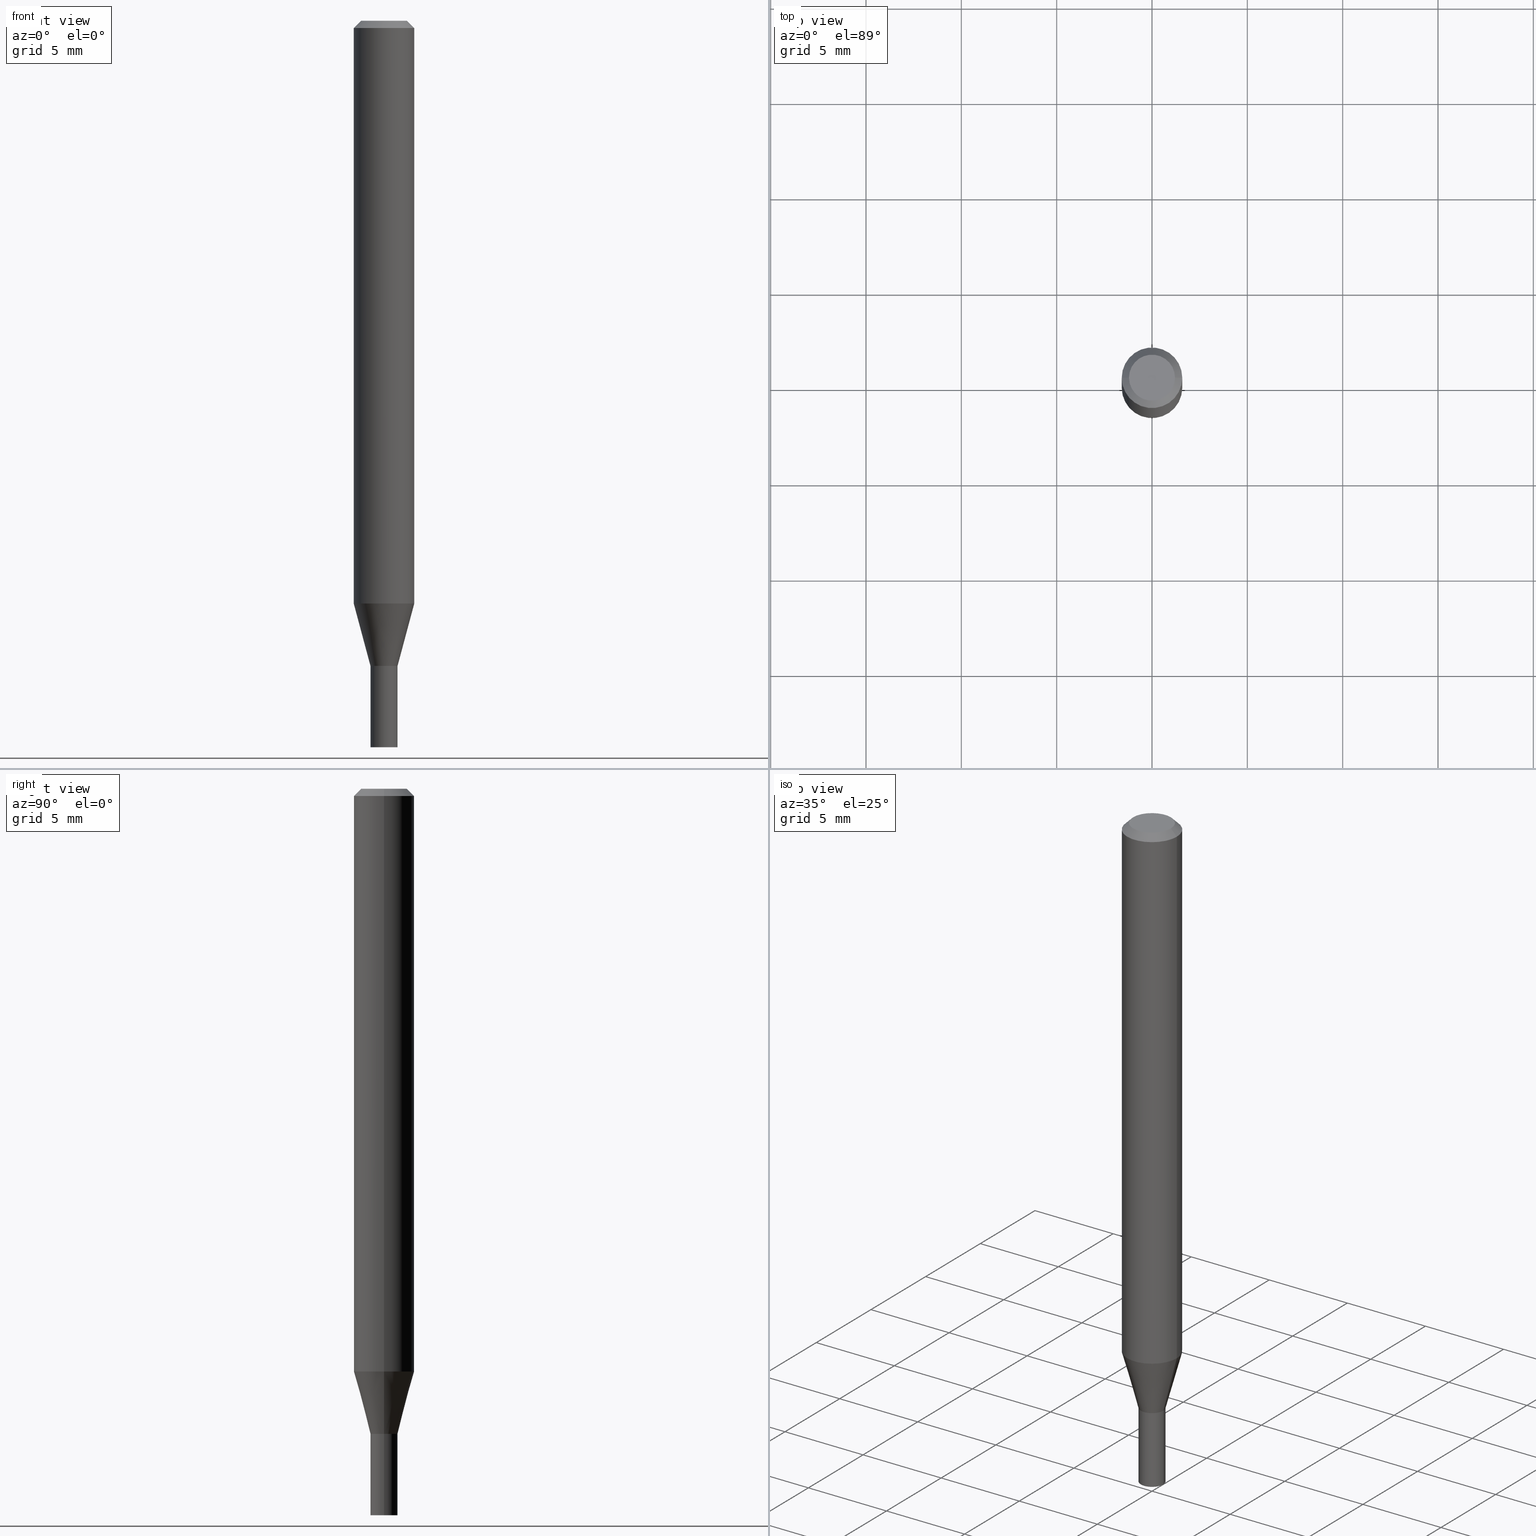
[diagram: canonical four-view strip — front | top / right | iso, engineering-drawing reading convention]
A machine part, canonical four-view strip (front | top / right | iso — engineering-drawing reading convention). The complete STEP part file that produces these views, byte-faithful:
ISO-10303-21;
HEADER;
FILE_DESCRIPTION (( 'STEP AP203' ),
    '1' );
FILE_NAME ('04162.STEP',
    '2024-03-14T17:09:15',
    ( '' ),
    ( '' ),
    'SwSTEP 2.0',
    'SolidWorks 2023',
    '' );
FILE_SCHEMA (( 'CONFIG_CONTROL_DESIGN' ));
ENDSEC;

DATA;
#1 = CC_DESIGN_PERSON_AND_ORGANIZATION_ASSIGNMENT ( #387, #246, ( #231 ) ) ;
#2 = CIRCLE ( 'NONE', #263, 0.02800000000000000405 ) ;
#3 = ORIENTED_EDGE ( 'NONE', *, *, #181, .F. ) ;
#4 = ORIENTED_EDGE ( 'NONE', *, *, #207, .F. ) ;
#5 = VERTEX_POINT ( 'NONE', #84 ) ;
#6 = FACE_OUTER_BOUND ( 'NONE', #153, .T. ) ;
#7 = AXIS2_PLACEMENT_3D ( 'NONE', #341, #36, #110 ) ;
#8 = EDGE_CURVE ( 'NONE', #150, #121, #260, .T. ) ;
#9 =( GEOMETRIC_REPRESENTATION_CONTEXT ( 3 ) GLOBAL_UNCERTAINTY_ASSIGNED_CONTEXT ( ( #360 ) ) GLOBAL_UNIT_ASSIGNED_CONTEXT ( ( #212, #428, #70 ) ) REPRESENTATION_CONTEXT ( 'NONE', 'WORKASPACE' ) );
#10 = EDGE_LOOP ( 'NONE', ( #72, #225 ) ) ;
#11 = DIRECTION ( 'NONE',  ( 0.7071067811865656694, -2.468850131082446387E-15, 0.7071067811865294761 ) ) ;
#12 = EDGE_CURVE ( 'NONE', #157, #91, #404, .T. ) ;
#13 = PERSON ( 'UNSPECIFIED', 'UNSPECIFIED', 'UNSPECIFIED', ('UNSPECIFIED'), ('UNSPECIFIED'), ('UNSPECIFIED') ) ;
#14 = ORIENTED_EDGE ( 'NONE', *, *, #8, .T. ) ;
#15 = DIRECTION ( 'NONE',  ( -2.438088387897960049E-29, 3.491481338843145188E-15, 1.000000000000000000 ) ) ;
#16 = ADVANCED_FACE ( 'NONE', ( #56 ), #79, .T. ) ;
#17 = VERTEX_POINT ( 'NONE', #357 ) ;
#18 = CIRCLE ( 'NONE', #271, 0.02800000000000019834 ) ;
#19 = AXIS2_PLACEMENT_3D ( 'NONE', #183, #156, #114 ) ;
#20 = ORGANIZATION ( 'UNSPECIFIED', 'UNSPECIFIED', '' ) ;
#21 = VERTEX_POINT ( 'NONE', #48 ) ;
#22 = CARTESIAN_POINT ( 'NONE',  ( 0.02800000000000000405, -4.846176098314285600E-15, -1.332000000000000073 ) ) ;
#23 = LINE ( 'NONE', #297, #51 ) ;
#24 = DIRECTION ( 'NONE',  ( -2.445468806185136597E-29, 3.491481338843145583E-15, 1.000000000000000000 ) ) ;
#25 = CIRCLE ( 'NONE', #458, 0.02800000000000019487 ) ;
#26 = LINE ( 'NONE', #164, #307 ) ;
#27 = EDGE_CURVE ( 'NONE', #426, #206, #411, .T. ) ;
#28 = DIRECTION ( 'NONE',  ( -0.7071067811865447972, 2.468850131082228662E-15, -0.7071067811865501263 ) ) ;
#29 = EDGE_CURVE ( 'NONE', #399, #343, #160, .T. ) ;
#30 = APPROVAL_STATUS ( 'not_yet_approved' ) ;
#31 = CYLINDRICAL_SURFACE ( 'NONE', #71, 0.02800000000000000405 ) ;
#32 = AXIS2_PLACEMENT_3D ( 'NONE', #330, #100, #197 ) ;
#33 = CALENDAR_DATE ( 2024, 14, 3 ) ;
#34 = VERTEX_POINT ( 'NONE', #178 ) ;
#35 = DIRECTION ( 'NONE',  ( 1.000000000000000000, 0.000000000000000000, 0.000000000000000000 ) ) ;
#36 = DIRECTION ( 'NONE',  ( -2.445468806185136597E-29, 3.491481338843145583E-15, 1.000000000000000000 ) ) ;
#37 = CYLINDRICAL_SURFACE ( 'NONE', #445, 0.02800000000000000405 ) ;
#38 = APPROVAL ( #30, 'UNSPECIFIED' ) ;
#39 = LINE ( 'NONE', #208, #417 ) ;
#40 = ORIENTED_EDGE ( 'NONE', *, *, #117, .T. ) ;
#41 = CIRCLE ( 'NONE', #376, 0.02750000000000000014 ) ;
#42 = CARTESIAN_POINT ( 'NONE',  ( 0.000000000000000000, 0.000000000000000000, 0.000000000000000000 ) ) ;
#43 = PERSON_AND_ORGANIZATION_ROLE ( 'design_owner' ) ;
#44 = ORIENTED_EDGE ( 'NONE', *, *, #67, .T. ) ;
#45 = ORIENTED_EDGE ( 'NONE', *, *, #257, .T. ) ;
#46 = EDGE_CURVE ( 'NONE', #343, #121, #39, .T. ) ;
#47 = ORIENTED_EDGE ( 'NONE', *, *, #99, .F. ) ;
#48 = CARTESIAN_POINT ( 'NONE',  ( 0.02800000000000000405, -5.432744963239933676E-15, -1.500000000000000222 ) ) ;
#49 = ADVANCED_FACE ( 'NONE', ( #247 ), #429, .F. ) ;
#50 = DIRECTION ( 'NONE',  ( 2.445468806185136597E-29, -3.491481338843145583E-15, -1.000000000000000000 ) ) ;
#51 = VECTOR ( 'NONE', #28, 39.37007874015748854 ) ;
#52 = EDGE_CURVE ( 'NONE', #406, #281, #216, .T. ) ;
#53 = DIRECTION ( 'NONE',  ( -2.445468806185136877E-29, 3.491481338843145188E-15, 1.000000000000000000 ) ) ;
#54 = FACE_OUTER_BOUND ( 'NONE', #315, .T. ) ;
#55 = EDGE_CURVE ( 'NONE', #5, #21, #2, .T. ) ;
#56 = FACE_OUTER_BOUND ( 'NONE', #163, .T. ) ;
#57 = ORIENTED_EDGE ( 'NONE', *, *, #427, .T. ) ;
#58 = DIRECTION ( 'NONE',  ( -2.445468806185136597E-29, 3.491481338843145583E-15, 1.000000000000000000 ) ) ;
#59 = CARTESIAN_POINT ( 'NONE',  ( 3.257364449838602072E-29, -4.650653143339070101E-15, -1.332000000000000073 ) ) ;
#60 = AXIS2_PLACEMENT_3D ( 'NONE', #268, #413, #372 ) ;
#61 = DIRECTION ( 'NONE',  ( 1.000000000000000000, -6.982962677686262766E-15, 0.000000000000000000 ) ) ;
#62 = DIRECTION ( 'NONE',  ( -1.000000000000000000, 6.982962677686265922E-15, -4.876176775795935793E-29 ) ) ;
#63 = DIRECTION ( 'NONE',  ( 2.438088387897960049E-29, -3.491481338843145188E-15, -1.000000000000000000 ) ) ;
#64 = AXIS2_PLACEMENT_3D ( 'NONE', #128, #63, #62 ) ;
#65 = AXIS2_PLACEMENT_3D ( 'NONE', #378, #391, #152 ) ;
#66 = DIRECTION ( 'NONE',  ( -2.445468806185136597E-29, 3.491481338843145583E-15, 1.000000000000000000 ) ) ;
#67 = EDGE_CURVE ( 'NONE', #159, #157, #104, .T. ) ;
#68 = DIRECTION ( 'NONE',  ( -2.445468806185136597E-29, 3.491481338843145583E-15, 1.000000000000000000 ) ) ;
#69 = EDGE_LOOP ( 'NONE', ( #464, #191 ) ) ;
#70 =( NAMED_UNIT ( * ) SI_UNIT ( $, .STERADIAN. ) SOLID_ANGLE_UNIT ( ) );
#71 = AXIS2_PLACEMENT_3D ( 'NONE', #142, #424, #339 ) ;
#72 = ORIENTED_EDGE ( 'NONE', *, *, #130, .T. ) ;
#73 = CIRCLE ( 'NONE', #132, 0.06250000000000000000 ) ;
#74 = CARTESIAN_POINT ( 'NONE',  ( 3.668203209277704895E-29, -5.237222008264718177E-15, -1.500000000000000222 ) ) ;
#75 = ORIENTED_EDGE ( 'NONE', *, *, #300, .T. ) ;
#76 = LENGTH_MEASURE_WITH_UNIT ( LENGTH_MEASURE( 0.02539999999999999897 ), #140 );
#77 = EDGE_LOOP ( 'NONE', ( #45, #232, #221, #47 ) ) ;
#78 = APPROVAL_DATE_TIME ( #148, #286 ) ;
#79 = CONICAL_SURFACE ( 'NONE', #200, 0.02800000000000019487, 0.2617993877991501850 ) ;
#80 = APPROVAL_PERSON_ORGANIZATION ( #319, #38, #175 ) ;
#81 = ORIENTED_EDGE ( 'NONE', *, *, #190, .F. ) ;
#82 = CC_DESIGN_DATE_AND_TIME_ASSIGNMENT ( #135, #167, ( #231 ) ) ;
#83 = DIRECTION ( 'NONE',  ( 1.000000000000000000, -6.982962677686284065E-15, 0.000000000000000000 ) ) ;
#84 = CARTESIAN_POINT ( 'NONE',  ( -0.02800000000000000405, -4.744985609789067093E-15, -1.500000000000000222 ) ) ;
#85 = DIRECTION ( 'NONE',  ( -2.445468806185136597E-29, 3.491481338843145583E-15, 1.000000000000000000 ) ) ;
#86 = ORIENTED_EDGE ( 'NONE', *, *, #52, .T. ) ;
#87 = ADVANCED_FACE ( 'NONE', ( #465 ), #31, .T. ) ;
#88 = DIRECTION ( 'NONE',  ( 1.000000000000000000, -6.982962677686266711E-15, 4.876176775795935232E-29 ) ) ;
#89 = AXIS2_PLACEMENT_3D ( 'NONE', #147, #317, #35 ) ;
#90 = CARTESIAN_POINT ( 'NONE',  ( -0.02800000000000019487, 1.989519660128294367E-16, -1.377301825271383180E-30 ) ) ;
#91 = VERTEX_POINT ( 'NONE', #106 ) ;
#92 = DIRECTION ( 'NONE',  ( -2.445468806185136597E-29, 3.491481338843145583E-15, 1.000000000000000000 ) ) ;
#93 = DIRECTION ( 'NONE',  ( 0.7071067811865447972, -7.319954787623245001E-15, -0.7071067811865501263 ) ) ;
#94 = CARTESIAN_POINT ( 'NONE',  ( 0.06250000000000000000, -4.364351673553916694E-16, 3.047610484872459871E-30 ) ) ;
#95 = ADVANCED_FACE ( 'NONE', ( #139 ), #274, .F. ) ;
#96 = MANIFOLD_SOLID_BREP ( 'Body-Move/Copy2[1]', #143 ) ;
#97 = FACE_OUTER_BOUND ( 'NONE', #119, .T. ) ;
#98 = CARTESIAN_POINT ( 'NONE',  ( -0.02750000000000000014, -4.452604663830931569E-15, -1.332000000000000517 ) ) ;
#99 = EDGE_CURVE ( 'NONE', #21, #206, #447, .T. ) ;
#100 = DIRECTION ( 'NONE',  ( -2.445468806185136597E-29, 3.491481338843145583E-15, 1.000000000000000000 ) ) ;
#101 = EDGE_CURVE ( 'NONE', #352, #34, #299, .T. ) ;
#102 = APPROVAL_DATE_TIME ( #136, #149 ) ;
#103 = FACE_OUTER_BOUND ( 'NONE', #213, .T. ) ;
#104 = LINE ( 'NONE', #204, #359 ) ;
#105 = ORIENTED_EDGE ( 'NONE', *, *, #55, .T. ) ;
#106 = CARTESIAN_POINT ( 'NONE',  ( 0.06250000000000000000, -4.888073874380388472E-16, -0.01499999999999999944 ) ) ;
#107 = APPROVAL_ROLE ( '' ) ;
#108 = ORIENTED_EDGE ( 'NONE', *, *, #328, .F. ) ;
#109 = MECHANICAL_CONTEXT ( 'NONE', #422, 'mechanical' ) ;
#110 = DIRECTION ( 'NONE',  ( 1.000000000000000000, -6.982962677686279332E-15, 0.000000000000000000 ) ) ;
#111 = VECTOR ( 'NONE', #53, 39.37007874015748143 ) ;
#112 = PERSON_AND_ORGANIZATION ( #13, #20 ) ;
#113 = CC_DESIGN_APPROVAL ( #286, ( #218 ) ) ;
#114 = DIRECTION ( 'NONE',  ( 1.000000000000000000, -6.982962677686270655E-15, 0.000000000000000000 ) ) ;
#115 = COORDINATED_UNIVERSAL_TIME_OFFSET ( 5, 0, .BEHIND. ) ;
#116 = CARTESIAN_POINT ( 'NONE',  ( 0.02750000000000000014, -4.842684616975444171E-15, -1.332000000000000517 ) ) ;
#117 = EDGE_CURVE ( 'NONE', #34, #121, #18, .T. ) ;
#118 = DIRECTION ( 'NONE',  ( -0.2588190451025214611, 5.211531920934550253E-15, 0.9659258262890679791 ) ) ;
#119 = EDGE_LOOP ( 'NONE', ( #127, #248, #385, #4 ) ) ;
#120 = ORIENTED_EDGE ( 'NONE', *, *, #222, .F. ) ;
#121 = VERTEX_POINT ( 'NONE', #129 ) ;
#122 = CARTESIAN_POINT ( 'NONE',  ( -0.02800000000000019487, -4.451701177326241083E-15, -1.332000000000000073 ) ) ;
#123 = AXIS2_PLACEMENT_3D ( 'NONE', #198, #415, #301 ) ;
#124 = ORIENTED_EDGE ( 'NONE', *, *, #300, .F. ) ;
#125 = CARTESIAN_POINT ( 'NONE',  ( 3.668203209277705088E-31, -5.237222008264718399E-17, -0.01499999999999999944 ) ) ;
#126 = DIRECTION ( 'NONE',  ( -2.445468806185136877E-29, 3.491481338843145188E-15, 1.000000000000000000 ) ) ;
#127 = ORIENTED_EDGE ( 'NONE', *, *, #423, .T. ) ;
#128 = CARTESIAN_POINT ( 'NONE',  ( 3.316907271900976096E-16, 0.04749999999999999362, -1.076740139133766305E-16 ) ) ;
#129 = CARTESIAN_POINT ( 'NONE',  ( -0.02800000000000019834, -4.449955436656819579E-15, -1.331500000000000350 ) ) ;
#130 = EDGE_CURVE ( 'NONE', #206, #426, #256, .T. ) ;
#131 = AXIS2_PLACEMENT_3D ( 'NONE', #462, #313, #275 ) ;
#132 = AXIS2_PLACEMENT_3D ( 'NONE', #375, #66, #338 ) ;
#133 = PLANE ( 'NONE',  #241 ) ;
#134 = ADVANCED_FACE ( 'NONE', ( #332 ), #374, .T. ) ;
#135 = DATE_AND_TIME ( #176, #348 ) ;
#136 = DATE_AND_TIME ( #33, #195 ) ;
#137 = CARTESIAN_POINT ( 'NONE',  ( 3.576687321579069994E-29, -5.368277968210015545E-15, -1.500000000000000222 ) ) ;
#138 = LOCAL_TIME ( 13, 9, 15.00000000000000000, #312 ) ;
#139 = FACE_OUTER_BOUND ( 'NONE', #155, .T. ) ;
#140 =( LENGTH_UNIT ( ) NAMED_UNIT ( * ) SI_UNIT ( $, .METRE. ) );
#141 = DIRECTION ( 'NONE',  ( -2.445468806185136877E-29, 3.491481338843145188E-15, 1.000000000000000000 ) ) ;
#142 = CARTESIAN_POINT ( 'NONE',  ( 0.000000000000000000, 0.000000000000000000, 0.000000000000000000 ) ) ;
#143 = CLOSED_SHELL ( 'NONE', ( #305, #272, #87, #49 ) ) ;
#144 = AXIS2_PLACEMENT_3D ( 'NONE', #442, #50, #400 ) ;
#145 = EDGE_CURVE ( 'NONE', #406, #157, #23, .T. ) ;
#146 = ORIENTED_EDGE ( 'NONE', *, *, #29, .T. ) ;
#147 = CARTESIAN_POINT ( 'NONE',  ( 0.000000000000000000, 0.000000000000000000, 0.000000000000000000 ) ) ;
#148 = DATE_AND_TIME ( #466, #304 ) ;
#149 = APPROVAL ( #346, 'UNSPECIFIED' ) ;
#150 = VERTEX_POINT ( 'NONE', #449 ) ;
#151 = FACE_OUTER_BOUND ( 'NONE', #296, .T. ) ;
#152 = DIRECTION ( 'NONE',  ( -1.000000000000000000, 6.982962677686266711E-15, 0.000000000000000000 ) ) ;
#153 = EDGE_LOOP ( 'NONE', ( #219, #355, #435, #40 ) ) ;
#154 = CARTESIAN_POINT ( 'NONE',  ( 0.02800000000000019487, -4.846176098314287967E-15, -1.332000000000000073 ) ) ;
#155 = EDGE_LOOP ( 'NONE', ( #86, #441 ) ) ;
#156 = DIRECTION ( 'NONE',  ( -2.445468806185136597E-29, 3.491481338843145583E-15, 1.000000000000000000 ) ) ;
#157 = VERTEX_POINT ( 'NONE', #303 ) ;
#158 = CYLINDRICAL_SURFACE ( 'NONE', #170, 0.02800000000000019487 ) ;
#159 = VERTEX_POINT ( 'NONE', #238 ) ;
#160 = CIRCLE ( 'NONE', #7, 0.02750000000000000014 ) ;
#161 = AXIS2_PLACEMENT_3D ( 'NONE', #323, #278, #345 ) ;
#162 = APPROVAL_PERSON_ORGANIZATION ( #209, #149, #380 ) ;
#163 = EDGE_LOOP ( 'NONE', ( #226, #185, #188, #124 ) ) ;
#164 = CARTESIAN_POINT ( 'NONE',  ( 0.02800000000000019487, -4.846176098314287967E-15, -1.332000000000000073 ) ) ;
#165 = LINE ( 'NONE', #410, #302 ) ;
#166 = CARTESIAN_POINT ( 'NONE',  ( -0.02800000000000000405, 1.989519660128280808E-16, -1.377301825271373721E-30 ) ) ;
#167 = DATE_TIME_ROLE ( 'creation_date' ) ;
#168 = CARTESIAN_POINT ( 'NONE',  ( 0.02800000000000019487, -1.955229549752168307E-16, 1.365329497222871425E-30 ) ) ;
#169 = CONICAL_SURFACE ( 'NONE', #32, 0.02750000000000000014, 0.7853981633974739252 ) ;
#170 = AXIS2_PLACEMENT_3D ( 'NONE', #42, #85, #88 ) ;
#171 = CC_DESIGN_PERSON_AND_ORGANIZATION_ASSIGNMENT ( #112, #351, ( #280 ) ) ;
#172 = DIRECTION ( 'NONE',  ( -2.445468806185136877E-29, 3.491481338843145188E-15, 1.000000000000000000 ) ) ;
#173 = SHAPE_DEFINITION_REPRESENTATION ( #370, #196 ) ;
#174 = CC_DESIGN_APPROVAL ( #149, ( #280 ) ) ;
#175 = APPROVAL_ROLE ( '' ) ;
#176 = CALENDAR_DATE ( 2024, 14, 3 ) ;
#177 = EDGE_CURVE ( 'NONE', #91, #157, #240, .T. ) ;
#178 = CARTESIAN_POINT ( 'NONE',  ( 0.02800000000000019834, -4.844430357644866463E-15, -1.331500000000000350 ) ) ;
#179 = SECURITY_CLASSIFICATION_LEVEL ( 'unclassified' ) ;
#180 = EDGE_LOOP ( 'NONE', ( #146, #395, #210, #223 ) ) ;
#181 = EDGE_CURVE ( 'NONE', #150, #352, #431, .T. ) ;
#182 = DIRECTION ( 'NONE',  ( -2.445468806185136597E-29, 3.491481338843145583E-15, 1.000000000000000000 ) ) ;
#183 = CARTESIAN_POINT ( 'NONE',  ( 2.942496272599838320E-29, -4.201104834955752285E-15, -1.203244247138874901 ) ) ;
#184 = EDGE_LOOP ( 'NONE', ( #277, #262 ) ) ;
#185 = ORIENTED_EDGE ( 'NONE', *, *, #181, .T. ) ;
#186 = CIRCLE ( 'NONE', #19, 0.06250000000000000000 ) ;
#187 = DIRECTION ( 'NONE',  ( 1.000000000000000000, -6.982962677686266711E-15, 4.876176775795935793E-29 ) ) ;
#188 = ORIENTED_EDGE ( 'NONE', *, *, #207, .T. ) ;
#189 = DIRECTION ( 'NONE',  ( 1.000000000000000000, -6.982962677686266711E-15, 4.876176775795935232E-29 ) ) ;
#190 = EDGE_CURVE ( 'NONE', #121, #34, #192, .T. ) ;
#191 = ORIENTED_EDGE ( 'NONE', *, *, #55, .F. ) ;
#192 = CIRCLE ( 'NONE', #60, 0.02800000000000019834 ) ;
#193 = DIRECTION ( 'NONE',  ( 1.000000000000000000, -6.982962677686284065E-15, 0.000000000000000000 ) ) ;
#194 = DIRECTION ( 'NONE',  ( 1.000000000000000000, -6.982962677686267499E-15, 4.884662768193073002E-29 ) ) ;
#195 = LOCAL_TIME ( 13, 9, 15.00000000000000000, #205 ) ;
#196 = ADVANCED_BREP_SHAPE_REPRESENTATION ( '04162', ( #96, #419, #89 ), #9 ) ;
#197 = DIRECTION ( 'NONE',  ( 1.000000000000000000, -6.982962677686279332E-15, 0.000000000000000000 ) ) ;
#198 = CARTESIAN_POINT ( 'NONE',  ( 3.257364449838602072E-29, -4.650653143339070101E-15, -1.332000000000000073 ) ) ;
#199 = CARTESIAN_POINT ( 'NONE',  ( 3.257364449838602633E-29, -4.650653143339071678E-15, -1.332000000000000517 ) ) ;
#200 = AXIS2_PLACEMENT_3D ( 'NONE', #294, #448, #354 ) ;
#201 = DIRECTION ( 'NONE',  ( 0.2588190451025214611, 1.565188264969620982E-15, 0.9659258262890679791 ) ) ;
#202 = APPLICATION_CONTEXT ( 'configuration controlled 3d designs of mechanical parts and assemblies' ) ;
#203 = APPLICATION_PROTOCOL_DEFINITION ( 'international standard', 'config_control_design', 1994, #202 ) ;
#204 = CARTESIAN_POINT ( 'NONE',  ( -0.06250000000000000000, 4.440892098500626162E-16, -3.074334431409316114E-30 ) ) ;
#205 = COORDINATED_UNIVERSAL_TIME_OFFSET ( 5, 0, .BEHIND. ) ;
#206 = VERTEX_POINT ( 'NONE', #22 ) ;
#207 = EDGE_CURVE ( 'NONE', #352, #17, #26, .T. ) ;
#208 = CARTESIAN_POINT ( 'NONE',  ( -0.02750000000000000014, -4.455253891005043559E-15, -1.332000000000000517 ) ) ;
#209 = PERSON_AND_ORGANIZATION ( #13, #20 ) ;
#210 = ORIENTED_EDGE ( 'NONE', *, *, #117, .F. ) ;
#211 = CC_DESIGN_DATE_AND_TIME_ASSIGNMENT ( #251, #389, ( #280 ) ) ;
#212 =( CONVERSION_BASED_UNIT ( 'INCH', #76 ) LENGTH_UNIT ( ) NAMED_UNIT ( #214 ) );
#213 = EDGE_LOOP ( 'NONE', ( #3, #14, #340, #254 ) ) ;
#214 = DIMENSIONAL_EXPONENTS ( 1.000000000000000000, 0.000000000000000000, 0.000000000000000000, 0.000000000000000000, 0.000000000000000000, 0.000000000000000000, 0.000000000000000000 ) ;
#215 = APPLICATION_PROTOCOL_DEFINITION ( 'international standard', 'config_control_design', 1994, #422 ) ;
#216 = CIRCLE ( 'NONE', #457, 0.04749999999999999362 ) ;
#217 = PERSON_AND_ORGANIZATION_ROLE ( 'creator' ) ;
#218 = PRODUCT_DEFINITION_FORMATION_WITH_SPECIFIED_SOURCE ( 'ANY', '', #450, .NOT_KNOWN. ) ;
#219 = ORIENTED_EDGE ( 'NONE', *, *, #8, .F. ) ;
#220 = CARTESIAN_POINT ( 'NONE',  ( 3.257364449838602072E-29, -4.650653143339070101E-15, -1.332000000000000073 ) ) ;
#221 = ORIENTED_EDGE ( 'NONE', *, *, #130, .F. ) ;
#222 = EDGE_CURVE ( 'NONE', #281, #91, #165, .T. ) ;
#223 = ORIENTED_EDGE ( 'NONE', *, *, #420, .F. ) ;
#224 = DIRECTION ( 'NONE',  ( 1.000000000000000000, -6.982962677686279332E-15, 0.000000000000000000 ) ) ;
#225 = ORIENTED_EDGE ( 'NONE', *, *, #27, .T. ) ;
#226 = ORIENTED_EDGE ( 'NONE', *, *, #394, .F. ) ;
#227 = CONICAL_SURFACE ( 'NONE', #287, 0.02800000000000019487, 0.2617993877991501850 ) ;
#228 = LINE ( 'NONE', #122, #386 ) ;
#229 = ADVANCED_FACE ( 'NONE', ( #454 ), #169, .T. ) ;
#230 = CARTESIAN_POINT ( 'NONE',  ( 3.668203209277705088E-31, -5.237222008264718399E-17, -0.01499999999999999944 ) ) ;
#231 = PRODUCT_DEFINITION ( 'UNKNOWN', '', #218, #320 ) ;
#232 = ORIENTED_EDGE ( 'NONE', *, *, #337, .T. ) ;
#233 = DIRECTION ( 'NONE',  ( 1.000000000000000000, -6.982962677686266711E-15, 0.000000000000000000 ) ) ;
#234 = LINE ( 'NONE', #94, #288 ) ;
#235 = CARTESIAN_POINT ( 'NONE',  ( 3.257364449838602072E-29, -4.650653143339070101E-15, -1.332000000000000073 ) ) ;
#236 = LOCAL_TIME ( 13, 9, 15.00000000000000000, #283 ) ;
#237 = FACE_OUTER_BOUND ( 'NONE', #69, .T. ) ;
#238 = CARTESIAN_POINT ( 'NONE',  ( -0.06250000000000000000, -3.757015625105688880E-15, -1.203244247138874901 ) ) ;
#239 = CARTESIAN_POINT ( 'NONE',  ( 0.04749999999999999362, -4.035134999187576651E-16, 1.163426993633481204E-16 ) ) ;
#240 = CIRCLE ( 'NONE', #452, 0.06250000000000000000 ) ;
#241 = AXIS2_PLACEMENT_3D ( 'NONE', #137, #416, #269 ) ;
#242 = ADVANCED_FACE ( 'NONE', ( #97 ), #227, .T. ) ;
#243 = DIRECTION ( 'NONE',  ( 1.000000000000000000, -6.982962677686266711E-15, 4.876176775795935232E-29 ) ) ;
#244 = DIRECTION ( 'NONE',  ( -2.445468806185136597E-29, 3.491481338843145583E-15, 1.000000000000000000 ) ) ;
#245 = EDGE_LOOP ( 'NONE', ( #57, #44, #434, #289 ) ) ;
#246 = PERSON_AND_ORGANIZATION_ROLE ( 'creator' ) ;
#247 = FACE_OUTER_BOUND ( 'NONE', #10, .T. ) ;
#248 = ORIENTED_EDGE ( 'NONE', *, *, #394, .T. ) ;
#249 = AXIS2_PLACEMENT_3D ( 'NONE', #230, #58, #364 ) ;
#250 = DATE_AND_TIME ( #310, #138 ) ;
#251 = DATE_AND_TIME ( #425, #236 ) ;
#252 = CC_DESIGN_PERSON_AND_ORGANIZATION_ASSIGNMENT ( #342, #430, ( #218 ) ) ;
#253 = ORIENTED_EDGE ( 'NONE', *, *, #46, .F. ) ;
#254 = ORIENTED_EDGE ( 'NONE', *, *, #101, .F. ) ;
#255 = DIRECTION ( 'NONE',  ( 1.000000000000000000, -6.982962677686266711E-15, 4.876176775795935793E-29 ) ) ;
#256 = CIRCLE ( 'NONE', #123, 0.02800000000000000405 ) ;
#257 = EDGE_CURVE ( 'NONE', #21, #5, #439, .T. ) ;
#258 = DIRECTION ( 'NONE',  ( -2.445468806185136597E-29, 3.491481338843145583E-15, 1.000000000000000000 ) ) ;
#259 = ORIENTED_EDGE ( 'NONE', *, *, #337, .F. ) ;
#260 = LINE ( 'NONE', #90, #111 ) ;
#261 = CARTESIAN_POINT ( 'NONE',  ( 0.000000000000000000, 0.000000000000000000, 0.000000000000000000 ) ) ;
#262 = ORIENTED_EDGE ( 'NONE', *, *, #350, .F. ) ;
#263 = AXIS2_PLACEMENT_3D ( 'NONE', #74, #244, #311 ) ;
#264 = AXIS2_PLACEMENT_3D ( 'NONE', #438, #15, #285 ) ;
#265 = CARTESIAN_POINT ( 'NONE',  ( 0.02800000000000000405, -1.955229549752154995E-16, 1.365329497222862141E-30 ) ) ;
#266 = DIRECTION ( 'NONE',  ( 1.000000000000000000, -6.982962677686279332E-15, 0.000000000000000000 ) ) ;
#267 = DIRECTION ( 'NONE',  ( -2.445468806185136597E-29, 3.491481338843145583E-15, 1.000000000000000000 ) ) ;
#268 = CARTESIAN_POINT ( 'NONE',  ( 3.256141715435509832E-29, -4.648907402669649386E-15, -1.331500000000000350 ) ) ;
#269 = DIRECTION ( 'NONE',  ( 1.000000000000000000, -6.982962677686265922E-15, 4.876176775795935793E-29 ) ) ;
#270 = CARTESIAN_POINT ( 'NONE',  ( 3.256141715435509832E-29, -4.648907402669649386E-15, -1.331500000000000350 ) ) ;
#271 = AXIS2_PLACEMENT_3D ( 'NONE', #270, #92, #365 ) ;
#272 = ADVANCED_FACE ( 'NONE', ( #237 ), #133, .F. ) ;
#273 = AXIS2_PLACEMENT_3D ( 'NONE', #366, #267, #194 ) ;
#274 = PLANE ( 'NONE',  #64 ) ;
#275 = DIRECTION ( 'NONE',  ( -1.000000000000000000, 6.982962677686265922E-15, -4.876176775795935793E-29 ) ) ;
#276 = ORIENTED_EDGE ( 'NONE', *, *, #145, .F. ) ;
#277 = ORIENTED_EDGE ( 'NONE', *, *, #29, .F. ) ;
#278 = DIRECTION ( 'NONE',  ( -2.445468806185136597E-29, 3.491481338843145583E-15, 1.000000000000000000 ) ) ;
#279 = AXIS2_PLACEMENT_3D ( 'NONE', #368, #455, #61 ) ;
#280 = SECURITY_CLASSIFICATION ( '', '', #179 ) ;
#281 = VERTEX_POINT ( 'NONE', #239 ) ;
#282 = CARTESIAN_POINT ( 'NONE',  ( 0.000000000000000000, 0.000000000000000000, 0.000000000000000000 ) ) ;
#283 = COORDINATED_UNIVERSAL_TIME_OFFSET ( 5, 0, .BEHIND. ) ;
#284 = CARTESIAN_POINT ( 'NONE',  ( -0.04749999999999999362, 3.578768372314212971E-16, 1.163426993633431407E-16 ) ) ;
#285 = DIRECTION ( 'NONE',  ( 1.000000000000000000, -6.982962677686265922E-15, 4.876176775795935793E-29 ) ) ;
#286 = APPROVAL ( #334, 'UNSPECIFIED' ) ;
#287 = AXIS2_PLACEMENT_3D ( 'NONE', #235, #371, #306 ) ;
#288 = VECTOR ( 'NONE', #126, 39.37007874015748143 ) ;
#289 = ORIENTED_EDGE ( 'NONE', *, *, #321, .F. ) ;
#290 = ORIENTED_EDGE ( 'NONE', *, *, #420, .T. ) ;
#291 = CC_DESIGN_PERSON_AND_ORGANIZATION_ASSIGNMENT ( #349, #43, ( #450 ) ) ;
#292 = EDGE_LOOP ( 'NONE', ( #108, #377, #409, #276 ) ) ;
#293 = FACE_OUTER_BOUND ( 'NONE', #184, .T. ) ;
#294 = CARTESIAN_POINT ( 'NONE',  ( 3.257364449838602072E-29, -4.650653143339070101E-15, -1.332000000000000073 ) ) ;
#295 = AXIS2_PLACEMENT_3D ( 'NONE', #59, #335, #193 ) ;
#296 = EDGE_LOOP ( 'NONE', ( #120, #381, #392, #443 ) ) ;
#297 = CARTESIAN_POINT ( 'NONE',  ( -0.06250000000000000000, 3.840629472727444916E-16, -0.01499999999999999944 ) ) ;
#298 = ORIENTED_EDGE ( 'NONE', *, *, #27, .F. ) ;
#299 = LINE ( 'NONE', #168, #384 ) ;
#300 = EDGE_CURVE ( 'NONE', #159, #17, #73, .T. ) ;
#301 = DIRECTION ( 'NONE',  ( 1.000000000000000000, -6.982962677686262766E-15, 0.000000000000000000 ) ) ;
#302 = VECTOR ( 'NONE', #93, 39.37007874015748854 ) ;
#303 = CARTESIAN_POINT ( 'NONE',  ( -0.06250000000000000000, -1.682649317669137066E-15, -0.01499999999999999944 ) ) ;
#304 = LOCAL_TIME ( 13, 9, 15.00000000000000000, #115 ) ;
#305 = ADVANCED_FACE ( 'NONE', ( #390 ), #37, .T. ) ;
#306 = DIRECTION ( 'NONE',  ( 1.000000000000000000, -6.982962677686284065E-15, 0.000000000000000000 ) ) ;
#307 = VECTOR ( 'NONE', #201, 39.37007874015748143 ) ;
#308 = ORIENTED_EDGE ( 'NONE', *, *, #99, .T. ) ;
#309 = CONICAL_SURFACE ( 'NONE', #144, 0.06250000000000000000, 0.7853981633974445042 ) ;
#310 = CALENDAR_DATE ( 2024, 14, 3 ) ;
#311 = DIRECTION ( 'NONE',  ( 1.000000000000000000, -6.982962677686262766E-15, 0.000000000000000000 ) ) ;
#312 = COORDINATED_UNIVERSAL_TIME_OFFSET ( 5, 0, .BEHIND. ) ;
#313 = DIRECTION ( 'NONE',  ( 2.438088387897960049E-29, -3.491481338843145188E-15, -1.000000000000000000 ) ) ;
#314 = PERSON_AND_ORGANIZATION ( #13, #20 ) ;
#315 = EDGE_LOOP ( 'NONE', ( #318, #75, #325, #362 ) ) ;
#316 = VECTOR ( 'NONE', #407, 39.37007874015748143 ) ;
#317 = DIRECTION ( 'NONE',  ( 0.000000000000000000, 0.000000000000000000, 1.000000000000000000 ) ) ;
#318 = ORIENTED_EDGE ( 'NONE', *, *, #67, .F. ) ;
#319 = PERSON_AND_ORGANIZATION ( #13, #20 ) ;
#320 = DESIGN_CONTEXT ( 'detailed design', #202, 'design' ) ;
#321 = EDGE_CURVE ( 'NONE', #17, #91, #234, .T. ) ;
#322 = CLOSED_SHELL ( 'NONE', ( #446, #229, #459, #408, #242, #16, #369, #367, #95, #373, #134, #388 ) ) ;
#323 = CARTESIAN_POINT ( 'NONE',  ( 3.257364449838602072E-29, -4.650653143339070101E-15, -1.332000000000000073 ) ) ;
#324 = LINE ( 'NONE', #116, #405 ) ;
#325 = ORIENTED_EDGE ( 'NONE', *, *, #321, .T. ) ;
#326 = AXIS2_PLACEMENT_3D ( 'NONE', #347, #437, #187 ) ;
#327 = DIRECTION ( 'NONE',  ( -2.445468806185136597E-29, 3.491481338843145583E-15, 1.000000000000000000 ) ) ;
#328 = EDGE_CURVE ( 'NONE', #281, #406, #412, .T. ) ;
#329 = PRODUCT_RELATED_PRODUCT_CATEGORY ( 'detail', '', ( #450 ) ) ;
#330 = CARTESIAN_POINT ( 'NONE',  ( 3.257364449838602633E-29, -4.650653143339071678E-15, -1.332000000000000517 ) ) ;
#331 = LINE ( 'NONE', #166, #361 ) ;
#332 = FACE_OUTER_BOUND ( 'NONE', #401, .T. ) ;
#333 = CARTESIAN_POINT ( 'NONE',  ( 3.257364449838602633E-29, -4.650653143339071678E-15, -1.332000000000000517 ) ) ;
#334 = APPROVAL_STATUS ( 'not_yet_approved' ) ;
#335 = DIRECTION ( 'NONE',  ( -2.445468806185136597E-29, 3.491481338843145583E-15, 1.000000000000000000 ) ) ;
#336 = CC_DESIGN_SECURITY_CLASSIFICATION ( #280, ( #218 ) ) ;
#337 = EDGE_CURVE ( 'NONE', #5, #426, #331, .T. ) ;
#338 = DIRECTION ( 'NONE',  ( 1.000000000000000000, -6.982962677686270655E-15, 0.000000000000000000 ) ) ;
#339 = DIRECTION ( 'NONE',  ( 1.000000000000000000, -6.982962677686266711E-15, 4.876176775795935232E-29 ) ) ;
#340 = ORIENTED_EDGE ( 'NONE', *, *, #190, .T. ) ;
#341 = CARTESIAN_POINT ( 'NONE',  ( 3.257364449838602633E-29, -4.650653143339071678E-15, -1.332000000000000517 ) ) ;
#342 = PERSON_AND_ORGANIZATION ( #13, #20 ) ;
#343 = VERTEX_POINT ( 'NONE', #98 ) ;
#344 = CYLINDRICAL_SURFACE ( 'NONE', #453, 0.02800000000000019487 ) ;
#345 = DIRECTION ( 'NONE',  ( 1.000000000000000000, -6.982962677686262766E-15, 0.000000000000000000 ) ) ;
#346 = APPROVAL_STATUS ( 'not_yet_approved' ) ;
#347 = CARTESIAN_POINT ( 'NONE',  ( 0.000000000000000000, 0.000000000000000000, 0.000000000000000000 ) ) ;
#348 = LOCAL_TIME ( 13, 9, 15.00000000000000000, #382 ) ;
#349 = PERSON_AND_ORGANIZATION ( #13, #20 ) ;
#350 = EDGE_CURVE ( 'NONE', #343, #399, #41, .T. ) ;
#351 = PERSON_AND_ORGANIZATION_ROLE ( 'classification_officer' ) ;
#352 = VERTEX_POINT ( 'NONE', #154 ) ;
#353 = CARTESIAN_POINT ( 'NONE',  ( -0.02800000000000000405, -4.744985609789067093E-15, -1.332000000000000073 ) ) ;
#354 = DIRECTION ( 'NONE',  ( 1.000000000000000000, -6.982962677686284065E-15, 0.000000000000000000 ) ) ;
#355 = ORIENTED_EDGE ( 'NONE', *, *, #423, .F. ) ;
#356 = FACE_OUTER_BOUND ( 'NONE', #245, .T. ) ;
#357 = CARTESIAN_POINT ( 'NONE',  ( 0.06250000000000000000, -4.637540002311143955E-15, -1.203244247138874901 ) ) ;
#358 = CYLINDRICAL_SURFACE ( 'NONE', #326, 0.06250000000000000000 ) ;
#359 = VECTOR ( 'NONE', #141, 39.37007874015748143 ) ;
#360 = UNCERTAINTY_MEASURE_WITH_UNIT (LENGTH_MEASURE( 1.000000000000000082E-05 ), #212, 'distance_accuracy_value', 'NONE');
#361 = VECTOR ( 'NONE', #451, 39.37007874015748143 ) ;
#362 = ORIENTED_EDGE ( 'NONE', *, *, #12, .F. ) ;
#363 = DIRECTION ( 'NONE',  ( -2.445468806185136597E-29, 3.491481338843145583E-15, 1.000000000000000000 ) ) ;
#364 = DIRECTION ( 'NONE',  ( 1.000000000000000000, -6.982962677686266711E-15, 0.000000000000000000 ) ) ;
#365 = DIRECTION ( 'NONE',  ( 1.000000000000000000, -6.982962677686283277E-15, 0.000000000000000000 ) ) ;
#366 = CARTESIAN_POINT ( 'NONE',  ( -2.845124421204368749E-45, 4.062083637377592914E-31, 1.163426993633455566E-16 ) ) ;
#367 = ADVANCED_FACE ( 'NONE', ( #151 ), #309, .T. ) ;
#368 = CARTESIAN_POINT ( 'NONE',  ( 3.668203209277704895E-29, -5.237222008264718177E-15, -1.500000000000000222 ) ) ;
#369 = ADVANCED_FACE ( 'NONE', ( #54 ), #396, .T. ) ;
#370 = PRODUCT_DEFINITION_SHAPE ( 'NONE', 'NONE',  #231 ) ;
#371 = DIRECTION ( 'NONE',  ( -2.445468806185136597E-29, 3.491481338843145583E-15, 1.000000000000000000 ) ) ;
#372 = DIRECTION ( 'NONE',  ( 1.000000000000000000, -6.982962677686283277E-15, 0.000000000000000000 ) ) ;
#373 = ADVANCED_FACE ( 'NONE', ( #293 ), #402, .F. ) ;
#374 = CONICAL_SURFACE ( 'NONE', #397, 0.02750000000000000014, 0.7853981633974739252 ) ;
#375 = CARTESIAN_POINT ( 'NONE',  ( 2.942496272599838320E-29, -4.201104834955752285E-15, -1.203244247138874901 ) ) ;
#376 = AXIS2_PLACEMENT_3D ( 'NONE', #333, #363, #224 ) ;
#377 = ORIENTED_EDGE ( 'NONE', *, *, #222, .T. ) ;
#378 = CARTESIAN_POINT ( 'NONE',  ( 3.668203209277705088E-31, -5.237222008264718399E-17, -0.01499999999999999944 ) ) ;
#379 = DIRECTION ( 'NONE',  ( -0.7071067811865656694, 7.493145998870420424E-15, 0.7071067811865294761 ) ) ;
#380 = APPROVAL_ROLE ( '' ) ;
#381 = ORIENTED_EDGE ( 'NONE', *, *, #52, .F. ) ;
#382 = COORDINATED_UNIVERSAL_TIME_OFFSET ( 5, 0, .BEHIND. ) ;
#383 = DIRECTION ( 'NONE',  ( 1.000000000000000000, -6.982962677686267499E-15, 4.884662768193073002E-29 ) ) ;
#384 = VECTOR ( 'NONE', #172, 39.37007874015748143 ) ;
#385 = ORIENTED_EDGE ( 'NONE', *, *, #427, .F. ) ;
#386 = VECTOR ( 'NONE', #118, 39.37007874015748143 ) ;
#387 = PERSON_AND_ORGANIZATION ( #13, #20 ) ;
#388 = ADVANCED_FACE ( 'NONE', ( #6 ), #158, .F. ) ;
#389 = DATE_TIME_ROLE ( 'classification_date' ) ;
#390 = FACE_OUTER_BOUND ( 'NONE', #77, .T. ) ;
#391 = DIRECTION ( 'NONE',  ( 2.445468806185136597E-29, -3.491481338843145583E-15, -1.000000000000000000 ) ) ;
#392 = ORIENTED_EDGE ( 'NONE', *, *, #145, .T. ) ;
#393 = CARTESIAN_POINT ( 'NONE',  ( 0.02750000000000000014, -4.842684616975444171E-15, -1.332000000000000517 ) ) ;
#394 = EDGE_CURVE ( 'NONE', #150, #159, #228, .T. ) ;
#395 = ORIENTED_EDGE ( 'NONE', *, *, #46, .T. ) ;
#396 = CYLINDRICAL_SURFACE ( 'NONE', #432, 0.06250000000000000000 ) ;
#397 = AXIS2_PLACEMENT_3D ( 'NONE', #199, #24, #266 ) ;
#398 = APPROVAL_PERSON_ORGANIZATION ( #463, #286, #107 ) ;
#399 = VERTEX_POINT ( 'NONE', #393 ) ;
#400 = DIRECTION ( 'NONE',  ( -1.000000000000000000, 6.982962677686266711E-15, 0.000000000000000000 ) ) ;
#401 = EDGE_LOOP ( 'NONE', ( #253, #460, #290, #81 ) ) ;
#402 = PLANE ( 'NONE',  #264 ) ;
#403 = DIRECTION ( 'NONE',  ( -2.445468806185136597E-29, 3.491481338843145583E-15, 1.000000000000000000 ) ) ;
#404 = CIRCLE ( 'NONE', #249, 0.06250000000000000000 ) ;
#405 = VECTOR ( 'NONE', #11, 39.37007874015748143 ) ;
#406 = VERTEX_POINT ( 'NONE', #284 ) ;
#407 = DIRECTION ( 'NONE',  ( -2.445468806185136877E-29, 3.491481338843145188E-15, 1.000000000000000000 ) ) ;
#408 = ADVANCED_FACE ( 'NONE', ( #356 ), #358, .T. ) ;
#409 = ORIENTED_EDGE ( 'NONE', *, *, #177, .T. ) ;
#410 = CARTESIAN_POINT ( 'NONE',  ( 0.06250000000000000000, -4.811533449433679005E-16, -0.01499999999999999944 ) ) ;
#411 = CIRCLE ( 'NONE', #161, 0.02800000000000000405 ) ;
#412 = CIRCLE ( 'NONE', #273, 0.04749999999999999362 ) ;
#413 = DIRECTION ( 'NONE',  ( -2.445468806185136597E-29, 3.491481338843145583E-15, 1.000000000000000000 ) ) ;
#414 = CC_DESIGN_PERSON_AND_ORGANIZATION_ASSIGNMENT ( #314, #217, ( #218 ) ) ;
#415 = DIRECTION ( 'NONE',  ( -2.445468806185136597E-29, 3.491481338843145583E-15, 1.000000000000000000 ) ) ;
#416 = DIRECTION ( 'NONE',  ( -2.438088387897960049E-29, 3.491481338843145188E-15, 1.000000000000000000 ) ) ;
#417 = VECTOR ( 'NONE', #379, 39.37007874015748143 ) ;
#418 = CONICAL_SURFACE ( 'NONE', #65, 0.06250000000000000000, 0.7853981633974445042 ) ;
#419 = MANIFOLD_SOLID_BREP ( 'Body-Move/Copy2[2]', #322 ) ;
#420 = EDGE_CURVE ( 'NONE', #399, #34, #324, .T. ) ;
#421 = CARTESIAN_POINT ( 'NONE',  ( -2.845124421204368749E-45, 4.062083637377592914E-31, 1.163426993633455566E-16 ) ) ;
#422 = APPLICATION_CONTEXT ( 'configuration controlled 3d designs of mechanical parts and assemblies' ) ;
#423 = EDGE_CURVE ( 'NONE', #352, #150, #25, .T. ) ;
#424 = DIRECTION ( 'NONE',  ( -2.445468806185136597E-29, 3.491481338843145583E-15, 1.000000000000000000 ) ) ;
#425 = CALENDAR_DATE ( 2024, 14, 3 ) ;
#426 = VERTEX_POINT ( 'NONE', #353 ) ;
#427 = EDGE_CURVE ( 'NONE', #17, #159, #186, .T. ) ;
#428 =( NAMED_UNIT ( * ) PLANE_ANGLE_UNIT ( ) SI_UNIT ( $, .RADIAN. ) );
#429 = PLANE ( 'NONE',  #131 ) ;
#430 = PERSON_AND_ORGANIZATION_ROLE ( 'design_supplier' ) ;
#431 = CIRCLE ( 'NONE', #295, 0.02800000000000019487 ) ;
#432 = AXIS2_PLACEMENT_3D ( 'NONE', #261, #403, #255 ) ;
#433 = FACE_OUTER_BOUND ( 'NONE', #292, .T. ) ;
#434 = ORIENTED_EDGE ( 'NONE', *, *, #177, .F. ) ;
#435 = ORIENTED_EDGE ( 'NONE', *, *, #101, .T. ) ;
#436 = CARTESIAN_POINT ( 'NONE',  ( 0.000000000000000000, 0.000000000000000000, 0.000000000000000000 ) ) ;
#437 = DIRECTION ( 'NONE',  ( -2.445468806185136597E-29, 3.491481338843145583E-15, 1.000000000000000000 ) ) ;
#438 = CARTESIAN_POINT ( 'NONE',  ( 3.257364449838602633E-29, -4.650653143339071678E-15, -1.332000000000000517 ) ) ;
#439 = CIRCLE ( 'NONE', #279, 0.02800000000000000405 ) ;
#440 = CC_DESIGN_APPROVAL ( #38, ( #231 ) ) ;
#441 = ORIENTED_EDGE ( 'NONE', *, *, #328, .T. ) ;
#442 = CARTESIAN_POINT ( 'NONE',  ( 3.668203209277705088E-31, -5.237222008264718399E-17, -0.01499999999999999944 ) ) ;
#443 = ORIENTED_EDGE ( 'NONE', *, *, #12, .T. ) ;
#444 = EDGE_LOOP ( 'NONE', ( #259, #105, #308, #298 ) ) ;
#445 = AXIS2_PLACEMENT_3D ( 'NONE', #282, #456, #189 ) ;
#446 = ADVANCED_FACE ( 'NONE', ( #103 ), #344, .F. ) ;
#447 = LINE ( 'NONE', #265, #316 ) ;
#448 = DIRECTION ( 'NONE',  ( -2.445468806185136597E-29, 3.491481338843145583E-15, 1.000000000000000000 ) ) ;
#449 = CARTESIAN_POINT ( 'NONE',  ( -0.02800000000000019487, -4.104358401215964982E-15, -1.332000000000000073 ) ) ;
#450 = PRODUCT ( '04162', '04162', '', ( #109 ) ) ;
#451 = DIRECTION ( 'NONE',  ( -2.445468806185136877E-29, 3.491481338843145188E-15, 1.000000000000000000 ) ) ;
#452 = AXIS2_PLACEMENT_3D ( 'NONE', #125, #327, #233 ) ;
#453 = AXIS2_PLACEMENT_3D ( 'NONE', #436, #182, #243 ) ;
#454 = FACE_OUTER_BOUND ( 'NONE', #180, .T. ) ;
#455 = DIRECTION ( 'NONE',  ( -2.445468806185136597E-29, 3.491481338843145583E-15, 1.000000000000000000 ) ) ;
#456 = DIRECTION ( 'NONE',  ( -2.445468806185136597E-29, 3.491481338843145583E-15, 1.000000000000000000 ) ) ;
#457 = AXIS2_PLACEMENT_3D ( 'NONE', #421, #68, #383 ) ;
#458 = AXIS2_PLACEMENT_3D ( 'NONE', #220, #258, #83 ) ;
#459 = ADVANCED_FACE ( 'NONE', ( #433 ), #418, .T. ) ;
#460 = ORIENTED_EDGE ( 'NONE', *, *, #350, .T. ) ;
#461 = APPROVAL_DATE_TIME ( #250, #38 ) ;
#462 = CARTESIAN_POINT ( 'NONE',  ( 1.955229549752480400E-16, 0.02799999999999535152, -1.332000000000000073 ) ) ;
#463 = PERSON_AND_ORGANIZATION ( #13, #20 ) ;
#464 = ORIENTED_EDGE ( 'NONE', *, *, #257, .F. ) ;
#465 = FACE_OUTER_BOUND ( 'NONE', #444, .T. ) ;
#466 = CALENDAR_DATE ( 2024, 14, 3 ) ;
ENDSEC;
END-ISO-10303-21;
